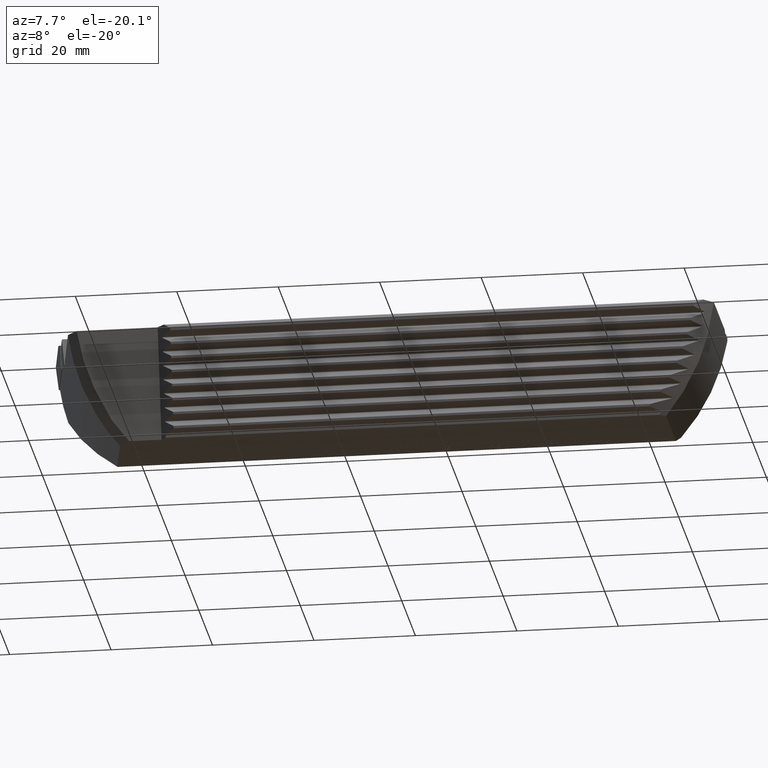
[diagram: clean part render]
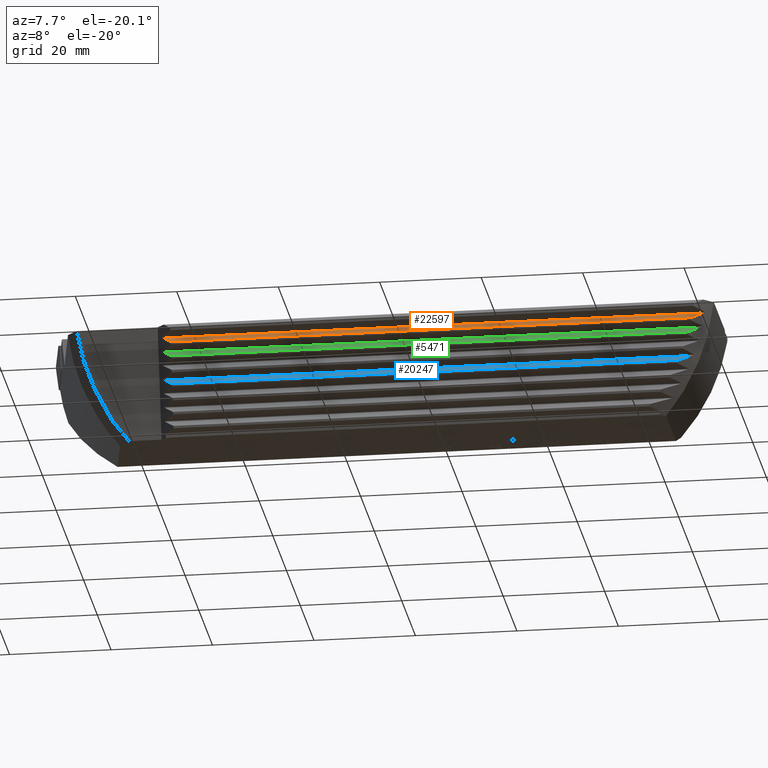
[diagram: same view with three faces highlighted in distinct colors, each labeled with its STEP entity id]
A machine part, auxiliary view with three faces highlighted in distinct colors.
Their STEP definitions:

[orange] entity #22597 — the highlighted planar face has unit normal (0, -0.7071, 0.7071).
#39 = FACE_OUTER_BOUND ( 'NONE', #7603, .T. ) ;
#98 = CARTESIAN_POINT ( 'NONE',  ( 135.0000000000000000, -37.31309732170002000, -8.479534750303647800 ) ) ;
#700 = VECTOR ( 'NONE', #5603, 1000.000000000000100 ) ;
#933 = EDGE_CURVE ( 'NONE', #4303, #16370, #5122, .T. ) ;
#1505 = CARTESIAN_POINT ( 'NONE',  ( 135.0000000000000000, -38.68889406056322100, -9.855331489166866600 ) ) ;
#2226 = ORIENTED_EDGE ( 'NONE', *, *, #18329, .F. ) ;
#2407 = VECTOR ( 'NONE', #13278, 1000.000000000000000 ) ;
#3012 = CARTESIAN_POINT ( 'NONE',  ( 131.1583596961542900, -38.23442250747633900, -9.400859936079967800 ) ) ;
#3043 = CARTESIAN_POINT ( 'NONE',  ( 131.5304897890244400, -38.00508252320455700, -9.171519951808189600 ) ) ;
#3097 = CARTESIAN_POINT ( 'NONE',  ( 131.9025799896393800, -37.77576712412316300, -8.942204552726792600 ) ) ;
#3194 = EDGE_CURVE ( 'NONE', #3784, #7715, #5415, .T. ) ;
#3272 = CARTESIAN_POINT ( 'NONE',  ( 132.2729819526199200, -37.54507555559165200, -8.711512984195300300 ) ) ;
#3369 = DIRECTION ( 'NONE',  ( -1.000000000000000000, 0.0000000000000000000, 1.063288424787860800E-017 ) ) ;
#3784 = VERTEX_POINT ( 'NONE', #19565 ) ;
#4121 = DIRECTION ( 'NONE',  ( 1.387778780781445400E-017, -0.7071067811865489100, 0.7071067811865461300 ) ) ;
#4303 = VERTEX_POINT ( 'NONE', #15865 ) ;
#5042 = CARTESIAN_POINT ( 'NONE',  ( 132.6417561652575000, -37.31309732170002000, -8.479534750303646000 ) ) ;
#5122 = LINE ( 'NONE', #6503, #700 ) ;
#5415 = B_SPLINE_CURVE_WITH_KNOTS ( 'NONE', 3,
 ( #5042, #3272, #3097, #3043, #3012, #7173, #7144 ),
 .UNSPECIFIED., .F., .F.,
 ( 4, 3, 4 ),
 ( 6.798699777552591100E-017, 0.001480743055748873000, 0.002961646335701721700 ),
 .UNSPECIFIED. ) ;
#5603 = DIRECTION ( 'NONE',  ( -0.6675548182220865100, 0.5264838861107124000, 0.5264838861107140600 ) ) ;
#5973 = CARTESIAN_POINT ( 'NONE',  ( 130.4089400897823300, -38.68889406056322100, -9.855331489166868400 ) ) ;
#6503 = CARTESIAN_POINT ( 'NONE',  ( 32.08235189819545500, -42.05955146835940900, -13.22598889696305400 ) ) ;
#6912 = VECTOR ( 'NONE', #3369, 1000.000000000000000 ) ;
#7144 = CARTESIAN_POINT ( 'NONE',  ( 130.4089400897823300, -38.68889406056322100, -9.855331489166868400 ) ) ;
#7173 = CARTESIAN_POINT ( 'NONE',  ( 130.7845308418541200, -38.46239235002974500, -9.628829778633367200 ) ) ;
#7603 = EDGE_LOOP ( 'NONE', ( #16104, #12808, #2226, #14267 ) ) ;
#7715 = VERTEX_POINT ( 'NONE', #5973 ) ;
#11261 = LINE ( 'NONE', #98, #2407 ) ;
#12808 = ORIENTED_EDGE ( 'NONE', *, *, #933, .F. ) ;
#13278 = DIRECTION ( 'NONE',  ( -1.000000000000000000, 0.0000000000000000000, 1.063288424787860800E-017 ) ) ;
#13790 = EDGE_CURVE ( 'NONE', #3784, #16370, #11261, .T. ) ;
#14267 = ORIENTED_EDGE ( 'NONE', *, *, #3194, .F. ) ;
#15411 = PLANE ( 'NONE',  #22807 ) ;
#15865 = CARTESIAN_POINT ( 'NONE',  ( 27.80852956001825000, -38.68889406056322100, -9.855331489166857800 ) ) ;
#16104 = ORIENTED_EDGE ( 'NONE', *, *, #13790, .T. ) ;
#16370 = VERTEX_POINT ( 'NONE', #23039 ) ;
#17277 = DIRECTION ( 'NONE',  ( -2.775557561562890700E-017, -0.7071067811865461300, -0.7071067811865489100 ) ) ;
#18329 = EDGE_CURVE ( 'NONE', #7715, #4303, #21911, .T. ) ;
#19565 = CARTESIAN_POINT ( 'NONE',  ( 132.6417561652575000, -37.31309732170002000, -8.479534750303646000 ) ) ;
#21911 = LINE ( 'NONE', #1505, #6912 ) ;
#22597 = ADVANCED_FACE ( 'NONE', ( #39 ), #15411, .T. ) ;
#22807 = AXIS2_PLACEMENT_3D ( 'NONE', #22881, #4121, #17277 ) ;
#22881 = CARTESIAN_POINT ( 'NONE',  ( 135.0000000000000000, -37.31309732170002000, -8.479534750303647800 ) ) ;
#23039 = CARTESIAN_POINT ( 'NONE',  ( 26.06408919602724300, -37.31309732170002000, -8.479534750303646000 ) ) ;

[blue] entity #20247 — the highlighted planar face has unit normal (0, -0.7071, 0.7071).
#76 = EDGE_CURVE ( 'NONE', #7551, #16349, #8114, .T. ) ;
#1115 = CARTESIAN_POINT ( 'NONE',  ( 127.4286870122205600, -36.55363693846737000, -17.82421955605167700 ) ) ;
#1755 = DIRECTION ( 'NONE',  ( -1.000000000000000000, 0.0000000000000000000, 1.063288424787860800E-017 ) ) ;
#1867 = LINE ( 'NONE', #5420, #11895 ) ;
#1987 = AXIS2_PLACEMENT_3D ( 'NONE', #19179, #21061, #9806 ) ;
#2129 = EDGE_CURVE ( 'NONE', #16349, #7936, #6376, .T. ) ;
#2199 = EDGE_CURVE ( 'NONE', #14117, #7551, #18475, .T. ) ;
#3070 = VECTOR ( 'NONE', #1755, 1000.000000000000000 ) ;
#4349 = ORIENTED_EDGE ( 'NONE', *, *, #76, .F. ) ;
#5420 = CARTESIAN_POINT ( 'NONE',  ( 135.0000000000000000, -35.17784019960416900, -16.44842281718846200 ) ) ;
#5807 = VECTOR ( 'NONE', #10818, 1000.000000000000000 ) ;
#6376 = LINE ( 'NONE', #18290, #5807 ) ;
#7024 = CARTESIAN_POINT ( 'NONE',  ( 135.0000000000000300, -36.55363693846737800, -17.82421955605168100 ) ) ;
#7551 = VERTEX_POINT ( 'NONE', #1115 ) ;
#7779 = FACE_OUTER_BOUND ( 'NONE', #21485, .T. ) ;
#7925 = PLANE ( 'NONE',  #1987 ) ;
#7936 = VERTEX_POINT ( 'NONE', #14501 ) ;
#8114 = LINE ( 'NONE', #7024, #3070 ) ;
#9051 = DIRECTION ( 'NONE',  ( -1.000000000000000000, 0.0000000000000000000, 1.063288424787860800E-017 ) ) ;
#9806 = DIRECTION ( 'NONE',  ( -2.775557561562891000E-017, -0.7071067811865465700, -0.7071067811865484600 ) ) ;
#10168 = ORIENTED_EDGE ( 'NONE', *, *, #2199, .F. ) ;
#10818 = DIRECTION ( 'NONE',  ( -0.6675548182220867300, 0.5264838861107124000, 0.5264838861107139500 ) ) ;
#11826 = CARTESIAN_POINT ( 'NONE',  ( 27.80852956001820400, -36.55363693846737000, -17.82421955605166600 ) ) ;
#11895 = VECTOR ( 'NONE', #9051, 1000.000000000000000 ) ;
#13165 = CARTESIAN_POINT ( 'NONE',  ( 130.1901645842281400, -35.17784019960416900, -16.44842281718846200 ) ) ;
#14117 = VERTEX_POINT ( 'NONE', #13165 ) ;
#14501 = CARTESIAN_POINT ( 'NONE',  ( 26.06408919602724300, -35.17784019960416900, -16.44842281718846200 ) ) ;
#16349 = VERTEX_POINT ( 'NONE', #11826 ) ;
#16766 = CARTESIAN_POINT ( 'NONE',  ( 127.4286870122205600, -36.55363693846737000, -17.82421955605167700 ) ) ;
#17091 = CARTESIAN_POINT ( 'NONE',  ( 130.1901645842281400, -35.17784019960416900, -16.44842281718846200 ) ) ;
#17458 = CARTESIAN_POINT ( 'NONE',  ( 129.2794324874819600, -35.64615877881305300, -16.91674139639733800 ) ) ;
#17775 = ORIENTED_EDGE ( 'NONE', *, *, #2129, .F. ) ;
#17944 = CARTESIAN_POINT ( 'NONE',  ( 128.3592289893769300, -36.10520907661945200, -17.37579169420376200 ) ) ;
#18290 = CARTESIAN_POINT ( 'NONE',  ( 30.03208231375387200, -38.30729770579847600, -19.57788032338277500 ) ) ;
#18475 = B_SPLINE_CURVE_WITH_KNOTS ( 'NONE', 3,
 ( #17091, #17458, #17944, #16766 ),
 .UNSPECIFIED., .F., .F.,
 ( 4, 4 ),
 ( 1.437712192991265300E-015, 0.003378177582694614800 ),
 .UNSPECIFIED. ) ;
#19179 = CARTESIAN_POINT ( 'NONE',  ( 135.0000000000000000, -35.17784019960416900, -16.44842281718846200 ) ) ;
#19891 = EDGE_CURVE ( 'NONE', #14117, #7936, #1867, .T. ) ;
#20247 = ADVANCED_FACE ( 'NONE', ( #7779 ), #7925, .T. ) ;
#21061 = DIRECTION ( 'NONE',  ( 1.387778780781445100E-017, -0.7071067811865484600, 0.7071067811865465700 ) ) ;
#21485 = EDGE_LOOP ( 'NONE', ( #22153, #17775, #4349, #10168 ) ) ;
#22153 = ORIENTED_EDGE ( 'NONE', *, *, #19891, .T. ) ;

[green] entity #5471 — the highlighted planar face has unit normal (0, -0.7071, 0.7071).
#400 = B_SPLINE_CURVE_WITH_KNOTS ( 'NONE', 3,
 ( #8970, #18232, #10865, #24003, #12766, #1484, #14637 ),
 .UNSPECIFIED., .F., .F.,
 ( 4, 3, 4 ),
 ( 1.473698388019210200E-016, 0.001539430080052739700, 0.003079073643013428000 ),
 .UNSPECIFIED. ) ;
#840 = PLANE ( 'NONE',  #20051 ) ;
#1484 = CARTESIAN_POINT ( 'NONE',  ( 130.0489563370474300, -37.75122944670067700, -12.28571527163119700 ) ) ;
#1574 = VECTOR ( 'NONE', #3455, 1000.000000000000000 ) ;
#2726 = DIRECTION ( 'NONE',  ( 1.387778780781445400E-017, -0.7071067811865489100, 0.7071067811865461300 ) ) ;
#2779 = VERTEX_POINT ( 'NONE', #16635 ) ;
#3455 = DIRECTION ( 'NONE',  ( -1.000000000000000000, 0.0000000000000000000, 1.063288424787860800E-017 ) ) ;
#3458 = EDGE_LOOP ( 'NONE', ( #9688, #6120, #20937, #5753 ) ) ;
#3524 = VECTOR ( 'NONE', #19419, 1000.000000000000100 ) ;
#3757 = DIRECTION ( 'NONE',  ( -1.000000000000000000, 0.0000000000000000000, 1.063288424787860800E-017 ) ) ;
#4333 = VERTEX_POINT ( 'NONE', #11695 ) ;
#4539 = CARTESIAN_POINT ( 'NONE',  ( 27.80852956001827200, -37.97714168653128300, -12.51162751146180700 ) ) ;
#5471 = ADVANCED_FACE ( 'NONE', ( #6263 ), #840, .T. ) ;
#5753 = ORIENTED_EDGE ( 'NONE', *, *, #6961, .F. ) ;
#6120 = ORIENTED_EDGE ( 'NONE', *, *, #15927, .F. ) ;
#6263 = FACE_OUTER_BOUND ( 'NONE', #3458, .T. ) ;
#6422 = LINE ( 'NONE', #16911, #21428 ) ;
#6961 = EDGE_CURVE ( 'NONE', #17890, #4333, #400, .T. ) ;
#8865 = EDGE_CURVE ( 'NONE', #4333, #10057, #6422, .T. ) ;
#8970 = CARTESIAN_POINT ( 'NONE',  ( 132.0336756273830200, -36.60134494766806100, -11.13583077259857900 ) ) ;
#9688 = ORIENTED_EDGE ( 'NONE', *, *, #11877, .T. ) ;
#10048 = CARTESIAN_POINT ( 'NONE',  ( 31.39892870338159600, -40.80880021417242200, -15.34328603910296200 ) ) ;
#10057 = VERTEX_POINT ( 'NONE', #4539 ) ;
#10865 = CARTESIAN_POINT ( 'NONE',  ( 131.2440012403855300, -37.06486700659525700, -11.59935283152579400 ) ) ;
#11695 = CARTESIAN_POINT ( 'NONE',  ( 129.6473149886902300, -37.97714168653126900, -12.51162751146179800 ) ) ;
#11877 = EDGE_CURVE ( 'NONE', #17890, #2779, #20413, .T. ) ;
#12146 = CARTESIAN_POINT ( 'NONE',  ( 135.0000000000000300, -36.60134494766806100, -11.13583077259857900 ) ) ;
#12766 = CARTESIAN_POINT ( 'NONE',  ( 130.4486060391238600, -37.52353659929968900, -12.05802242423022700 ) ) ;
#14637 = CARTESIAN_POINT ( 'NONE',  ( 129.6473149886902300, -37.97714168653126900, -12.51162751146179800 ) ) ;
#14738 = CARTESIAN_POINT ( 'NONE',  ( 135.0000000000000300, -36.60134494766806100, -11.13583077259857900 ) ) ;
#15896 = DIRECTION ( 'NONE',  ( -2.775557561562890700E-017, -0.7071067811865461300, -0.7071067811865489100 ) ) ;
#15927 = EDGE_CURVE ( 'NONE', #10057, #2779, #22947, .T. ) ;
#16635 = CARTESIAN_POINT ( 'NONE',  ( 26.06408919602724300, -36.60134494766806100, -11.13583077259858100 ) ) ;
#16911 = CARTESIAN_POINT ( 'NONE',  ( 135.0000000000000300, -37.97714168653127600, -12.51162751146180000 ) ) ;
#17890 = VERTEX_POINT ( 'NONE', #20945 ) ;
#18232 = CARTESIAN_POINT ( 'NONE',  ( 131.6397612017364600, -36.83388261472205000, -11.36836843965256900 ) ) ;
#19419 = DIRECTION ( 'NONE',  ( -0.6675548182220865100, 0.5264838861107124000, 0.5264838861107140600 ) ) ;
#20051 = AXIS2_PLACEMENT_3D ( 'NONE', #12146, #2726, #15896 ) ;
#20413 = LINE ( 'NONE', #14738, #1574 ) ;
#20937 = ORIENTED_EDGE ( 'NONE', *, *, #8865, .F. ) ;
#20945 = CARTESIAN_POINT ( 'NONE',  ( 132.0336756273830200, -36.60134494766806100, -11.13583077259857900 ) ) ;
#21428 = VECTOR ( 'NONE', #3757, 1000.000000000000000 ) ;
#22947 = LINE ( 'NONE', #10048, #3524 ) ;
#24003 = CARTESIAN_POINT ( 'NONE',  ( 130.8463309524376300, -37.29418605291889600, -11.82867187784943200 ) ) ;